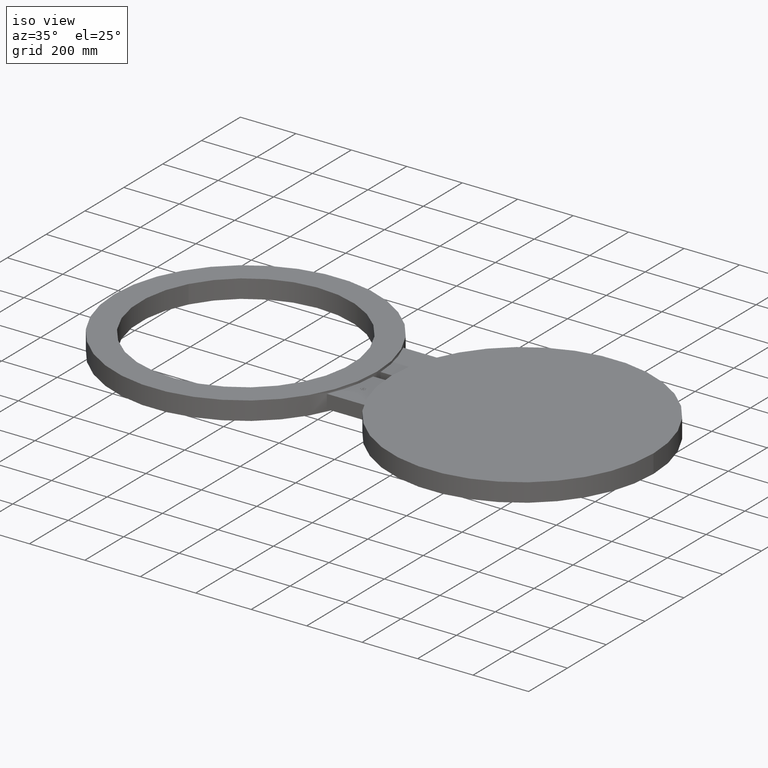
[diagram: clean part render]
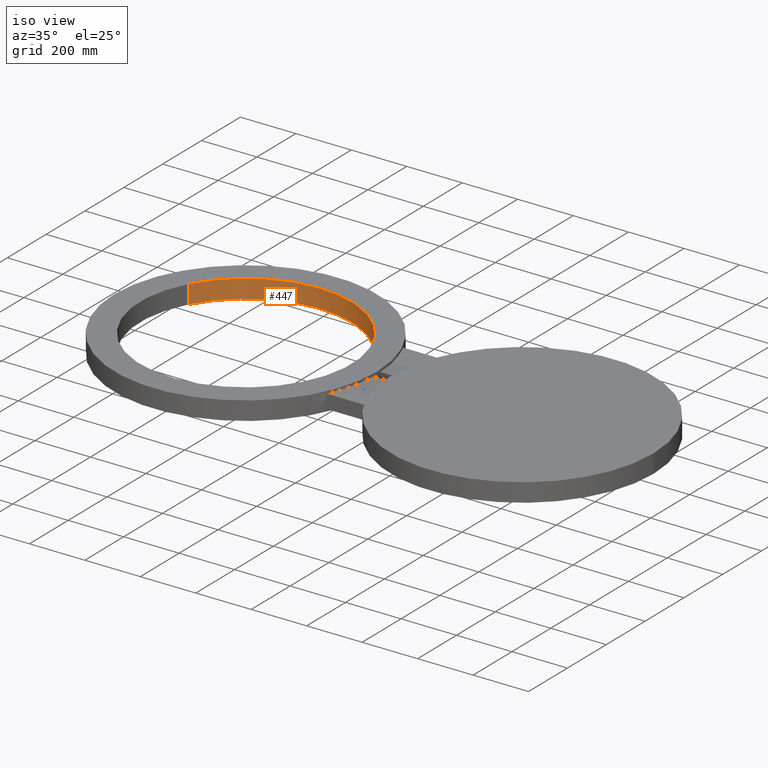
[diagram: same view with one face highlighted and labeled with its STEP entity id]
A machine part, iso view. The second image highlights one B-rep face of the part: STEP entity #447.
In plain terms, the highlighted cylindrical surface (partial cylindrical patch) has radius 381 mm, axis along (0, -0, -1).
Its self-contained STEP definition (entity closure, byte-faithful):
#199=AXIS2_PLACEMENT_3D('Circle Axis2P3D',#197,#198,$) ;
#399=AXIS2_PLACEMENT_3D('Cylinder Axis2P3D',#396,#397,#398) ;
#433=AXIS2_PLACEMENT_3D('Circle Axis2P3D',#431,#432,$) ;
#197=CARTESIAN_POINT('Axis2P3D Location',(2.23792987641E-015,-4.47585975282E-015,-1.31250000001)) ;
#201=CARTESIAN_POINT('Vertex',(13.1637384284,-7.19138307909,-1.31250000001)) ;
#203=CARTESIAN_POINT('Vertex',(-13.1637384284,7.19138307909,-1.31250000001)) ;
#396=CARTESIAN_POINT('Axis2P3D Location',(8.52336574023E-017,-6.99353086378E-017,1.30856299213)) ;
#401=CARTESIAN_POINT('Line Origine',(13.1637384284,-7.19138307909,2.79741234551E-016)) ;
#405=CARTESIAN_POINT('Vertex',(13.1637384284,-7.19138307909,1.31250000001)) ;
#408=CARTESIAN_POINT('Line Origine',(-13.1637384284,7.19138307909,2.79741234551E-016)) ;
#412=CARTESIAN_POINT('Vertex',(-13.1637384284,7.19138307909,1.31250000001)) ;
#431=CARTESIAN_POINT('Axis2P3D Location',(2.23792987641E-015,-4.47585975282E-015,1.31250000001)) ;
#198=DIRECTION('Axis2P3D Direction',(0.,0.,0.0393700787402)) ;
#397=DIRECTION('Axis2P3D Direction',(0.,-0.,-0.0393700787402)) ;
#398=DIRECTION('Axis2P3D XDirection',(-0.0345504945626,0.0188750212049,0.)) ;
#402=DIRECTION('Vector Direction',(0.,0.,-0.0393700787402)) ;
#409=DIRECTION('Vector Direction',(0.,0.,-0.0393700787402)) ;
#432=DIRECTION('Axis2P3D Direction',(0.,0.,0.0393700787402)) ;
#403=VECTOR('Line Direction',#402,0.0393700787402) ;
#410=VECTOR('Line Direction',#409,0.0393700787402) ;
#442=ORIENTED_EDGE('',*,*,#414,.F.) ;
#443=ORIENTED_EDGE('',*,*,#205,.F.) ;
#444=ORIENTED_EDGE('',*,*,#407,.T.) ;
#445=ORIENTED_EDGE('',*,*,#435,.T.) ;
#447=ADVANCED_FACE('PartBody',(#446),#400,.F.) ;
#200=CIRCLE('generated circle',#199,15.0000000001) ;
#434=CIRCLE('generated circle',#433,15.0000000001) ;
#400=CYLINDRICAL_SURFACE('generated cylinder',#399,15.0000000001) ;
#205=EDGE_CURVE('',#202,#204,#200,.T.) ;
#407=EDGE_CURVE('',#202,#406,#404,.F.) ;
#414=EDGE_CURVE('',#204,#413,#411,.F.) ;
#435=EDGE_CURVE('',#406,#413,#434,.T.) ;
#441=EDGE_LOOP('',(#442,#443,#444,#445)) ;
#446=FACE_OUTER_BOUND('',#441,.T.) ;
#404=LINE('Line',#401,#403) ;
#411=LINE('Line',#408,#410) ;
#202=VERTEX_POINT('',#201) ;
#204=VERTEX_POINT('',#203) ;
#406=VERTEX_POINT('',#405) ;
#413=VERTEX_POINT('',#412) ;